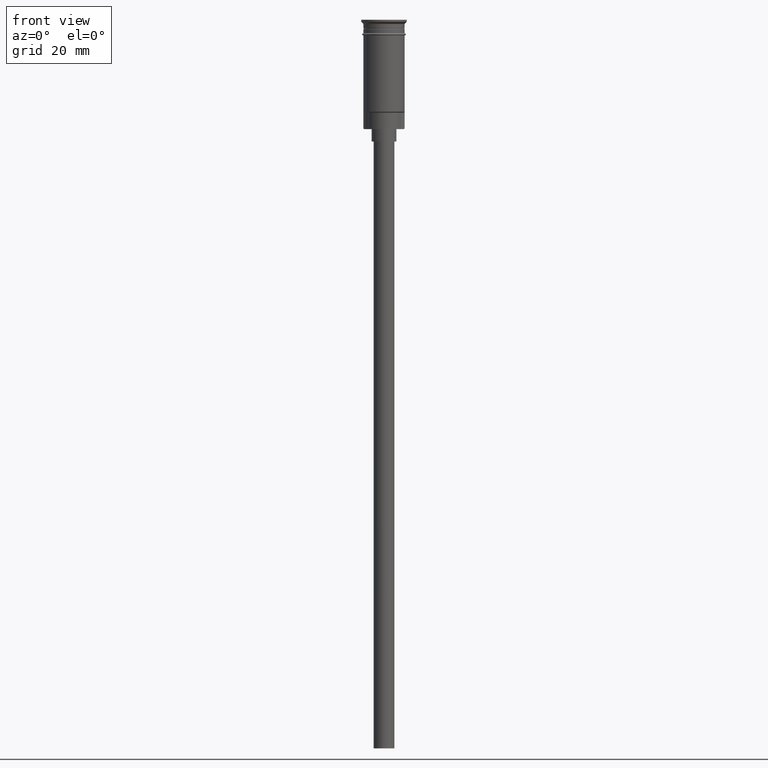
[diagram: clean part render]
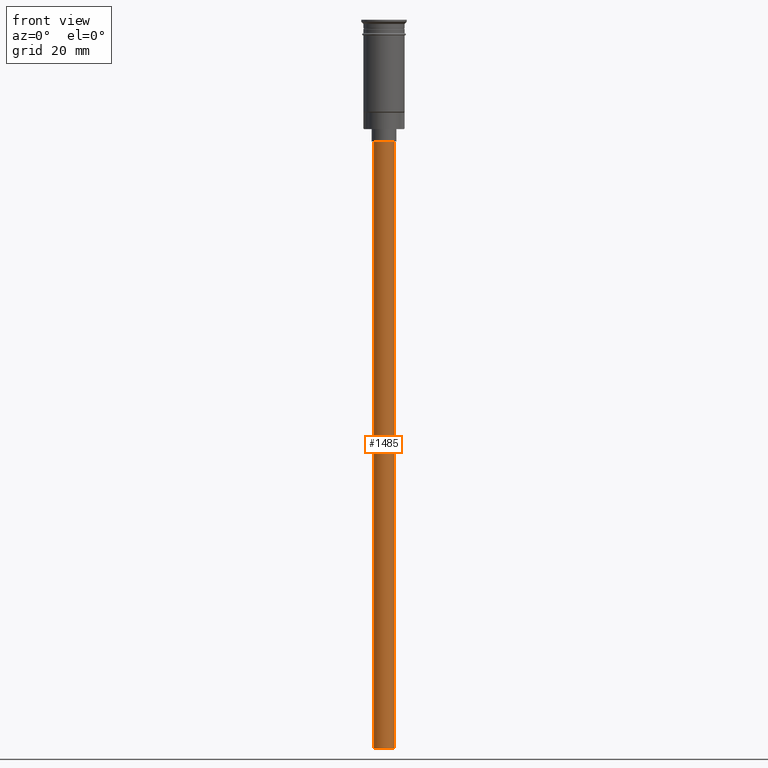
[diagram: same view with one face highlighted and labeled with its STEP entity id]
A machine part, front view. The second image highlights one B-rep face of the part: STEP entity #1485.
In plain terms, the highlighted cylindrical surface (edge-blend (fillet) strip) has radius 2.5 mm, axis along (-0, -0, 1).
Its self-contained STEP definition (entity closure, byte-faithful):
#102 = LINE ( 'NONE', #1587, #722 ) ;
#165 = ORIENTED_EDGE ( 'NONE', *, *, #1358, .F. ) ;
#198 = AXIS2_PLACEMENT_3D ( 'NONE', #429, #303, #796 ) ;
#246 = DIRECTION ( 'NONE',  ( -0.000000000000000000, -0.000000000000000000, 1.000000000000000000 ) ) ;
#303 = DIRECTION ( 'NONE',  ( 0.000000000000000000, 0.000000000000000000, -1.000000000000000000 ) ) ;
#368 = CARTESIAN_POINT ( 'NONE',  ( -2.500000000000000000, 3.061616997868383141E-16, -176.5000000000000000 ) ) ;
#414 = CARTESIAN_POINT ( 'NONE',  ( 0.000000000000000000, 0.000000000000000000, -176.5000000000000000 ) ) ;
#429 = CARTESIAN_POINT ( 'NONE',  ( 0.000000000000000000, 0.000000000000000000, -29.50000000000000000 ) ) ;
#461 = VECTOR ( 'NONE', #246, 1000.000000000000000 ) ;
#479 = DIRECTION ( 'NONE',  ( -0.000000000000000000, -0.000000000000000000, 1.000000000000000000 ) ) ;
#643 = DIRECTION ( 'NONE',  ( -1.000000000000000000, 0.000000000000000000, 0.000000000000000000 ) ) ;
#692 = CIRCLE ( 'NONE', #1411, 2.500000000000000000 ) ;
#722 = VECTOR ( 'NONE', #479, 1000.000000000000000 ) ;
#741 = CARTESIAN_POINT ( 'NONE',  ( -2.500000000000000000, 3.061616997868383141E-16, -176.5000000000000000 ) ) ;
#762 = EDGE_CURVE ( 'NONE', #1585, #1249, #102, .T. ) ;
#795 = FACE_OUTER_BOUND ( 'NONE', #1214, .T. ) ;
#796 = DIRECTION ( 'NONE',  ( -1.000000000000000000, 0.000000000000000000, 0.000000000000000000 ) ) ;
#913 = DIRECTION ( 'NONE',  ( 1.000000000000000000, 0.000000000000000000, 0.000000000000000000 ) ) ;
#930 = AXIS2_PLACEMENT_3D ( 'NONE', #414, #934, #913 ) ;
#934 = DIRECTION ( 'NONE',  ( -0.000000000000000000, -0.000000000000000000, 1.000000000000000000 ) ) ;
#952 = CARTESIAN_POINT ( 'NONE',  ( 2.500000000000000000, 0.000000000000000000, -29.50000000000000000 ) ) ;
#1008 = EDGE_CURVE ( 'NONE', #1585, #1383, #692, .T. ) ;
#1054 = EDGE_CURVE ( 'NONE', #1249, #1321, #1491, .T. ) ;
#1062 = CARTESIAN_POINT ( 'NONE',  ( 2.500000000000000000, 0.000000000000000000, -176.5000000000000000 ) ) ;
#1101 = CARTESIAN_POINT ( 'NONE',  ( -2.500000000000000000, 3.061616997868383141E-16, -29.50000000000000000 ) ) ;
#1167 = ORIENTED_EDGE ( 'NONE', *, *, #762, .T. ) ;
#1214 = EDGE_LOOP ( 'NONE', ( #165, #1375, #1167, #1219 ) ) ;
#1219 = ORIENTED_EDGE ( 'NONE', *, *, #1054, .T. ) ;
#1249 = VERTEX_POINT ( 'NONE', #952 ) ;
#1261 = CARTESIAN_POINT ( 'NONE',  ( 0.000000000000000000, 0.000000000000000000, -176.5000000000000000 ) ) ;
#1289 = CYLINDRICAL_SURFACE ( 'NONE', #930, 2.500000000000000000 ) ;
#1321 = VERTEX_POINT ( 'NONE', #1101 ) ;
#1358 = EDGE_CURVE ( 'NONE', #1383, #1321, #1497, .T. ) ;
#1375 = ORIENTED_EDGE ( 'NONE', *, *, #1008, .F. ) ;
#1383 = VERTEX_POINT ( 'NONE', #741 ) ;
#1411 = AXIS2_PLACEMENT_3D ( 'NONE', #1261, #1499, #643 ) ;
#1485 = ADVANCED_FACE ( 'NONE', ( #795 ), #1289, .T. ) ;
#1491 = CIRCLE ( 'NONE', #198, 2.500000000000000000 ) ;
#1497 = LINE ( 'NONE', #368, #461 ) ;
#1499 = DIRECTION ( 'NONE',  ( 0.000000000000000000, 0.000000000000000000, -1.000000000000000000 ) ) ;
#1585 = VERTEX_POINT ( 'NONE', #1062 ) ;
#1587 = CARTESIAN_POINT ( 'NONE',  ( 2.500000000000000000, 0.000000000000000000, -176.5000000000000000 ) ) ;